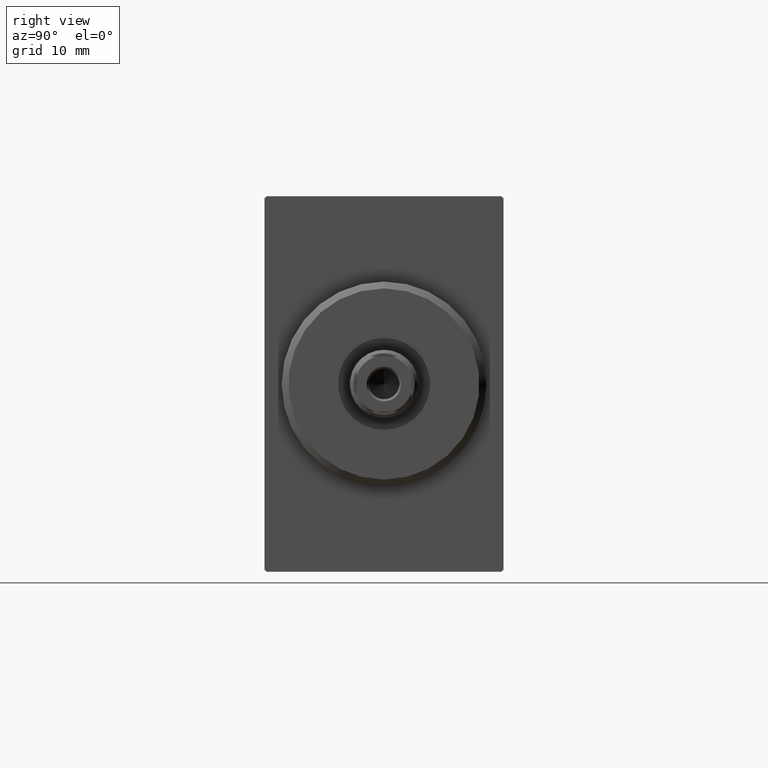
[diagram: clean part render]
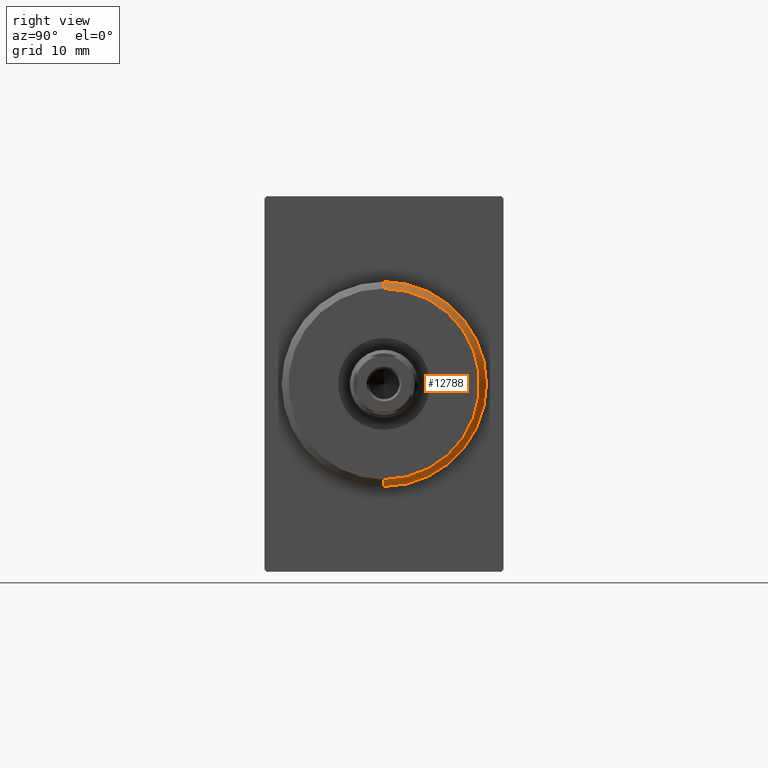
[diagram: same view with one face highlighted and labeled with its STEP entity id]
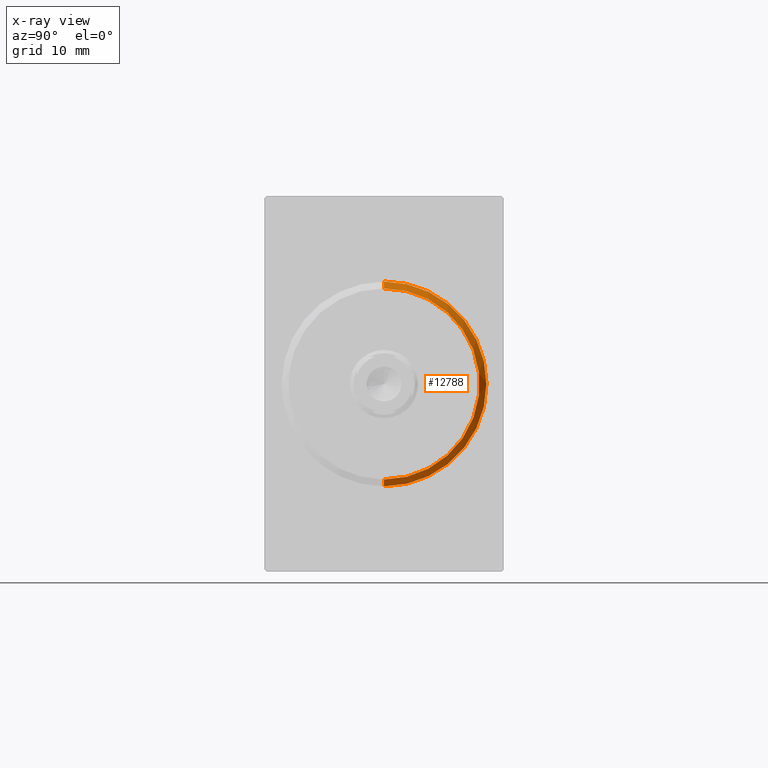
[diagram: x-ray of the same camera — body ghosted, the highlighted face saturated]
A machine part, right view. The second image highlights one B-rep face of the part: STEP entity #12788.
The next image is the same camera in x-ray: the body ghosted, the highlighted face saturated — about 0% of this face is hidden behind the body in this view.
In plain terms, the highlighted conical surface has half-angle 45 deg.
Its self-contained STEP definition (entity closure, byte-faithful):
#511 = AXIS2_PLACEMENT_3D ( 'NONE', #39841, #16606, #10259 ) ;
#1075 = DIRECTION ( 'NONE',  ( -1.000000000000000000, 0.000000000000000000, 0.000000000000000000 ) ) ;
#1335 = VECTOR ( 'NONE', #5879, 1000.000000000000114 ) ;
#1355 = LINE ( 'NONE', #14680, #41969 ) ;
#3305 = CARTESIAN_POINT ( 'NONE',  ( 2.000000000000002665, 1.836970198721029589E-15, -15.00000000000000000 ) ) ;
#5879 = DIRECTION ( 'NONE',  ( -0.7071067811865481278, 8.659560562354925463E-17, -0.7071067811865469066 ) ) ;
#6920 = CIRCLE ( 'NONE', #31414, 15.00000000000000000 ) ;
#8520 = ORIENTED_EDGE ( 'NONE', *, *, #18872, .T. ) ;
#10259 = DIRECTION ( 'NONE',  ( 0.000000000000000000, 0.000000000000000000, 1.000000000000000000 ) ) ;
#11244 = EDGE_CURVE ( 'NONE', #15242, #14721, #31226, .T. ) ;
#11573 = LINE ( 'NONE', #31959, #1335 ) ;
#11664 = CONICAL_SURFACE ( 'NONE', #511, 14.00000000000000355, 0.7853981633974473908 ) ;
#12788 = ADVANCED_FACE ( 'NONE', ( #26475 ), #11664, .T. ) ;
#14680 = CARTESIAN_POINT ( 'NONE',  ( 3.000000000000000000, 0.000000000000000000, 14.00000000000000355 ) ) ;
#14721 = VERTEX_POINT ( 'NONE', #42607 ) ;
#15134 = AXIS2_PLACEMENT_3D ( 'NONE', #32428, #43125, #35712 ) ;
#15242 = VERTEX_POINT ( 'NONE', #37300 ) ;
#15702 = ORIENTED_EDGE ( 'NONE', *, *, #11244, .F. ) ;
#16606 = DIRECTION ( 'NONE',  ( -1.000000000000000000, 0.000000000000000000, 0.000000000000000000 ) ) ;
#18872 = EDGE_CURVE ( 'NONE', #15242, #19324, #11573, .T. ) ;
#19324 = VERTEX_POINT ( 'NONE', #3305 ) ;
#20314 = EDGE_CURVE ( 'NONE', #42256, #19324, #6920, .T. ) ;
#21157 = ORIENTED_EDGE ( 'NONE', *, *, #20314, .F. ) ;
#23622 = CARTESIAN_POINT ( 'NONE',  ( 2.000000000000002665, 0.000000000000000000, 15.00000000000000000 ) ) ;
#26475 = FACE_OUTER_BOUND ( 'NONE', #39494, .T. ) ;
#26801 = EDGE_CURVE ( 'NONE', #14721, #42256, #1355, .T. ) ;
#29489 = ORIENTED_EDGE ( 'NONE', *, *, #26801, .F. ) ;
#31226 = CIRCLE ( 'NONE', #15134, 14.00000000000000355 ) ;
#31414 = AXIS2_PLACEMENT_3D ( 'NONE', #40699, #1075, #37856 ) ;
#31959 = CARTESIAN_POINT ( 'NONE',  ( 3.000000000000000000, 1.714505518806294835E-15, -14.00000000000000355 ) ) ;
#32428 = CARTESIAN_POINT ( 'NONE',  ( 3.000000000000000000, 0.000000000000000000, 0.000000000000000000 ) ) ;
#35712 = DIRECTION ( 'NONE',  ( 0.000000000000000000, 0.000000000000000000, -1.000000000000000000 ) ) ;
#37300 = CARTESIAN_POINT ( 'NONE',  ( 3.000000000000000000, 1.775737858763662015E-15, -14.00000000000000355 ) ) ;
#37856 = DIRECTION ( 'NONE',  ( 0.000000000000000000, 0.000000000000000000, -1.000000000000000000 ) ) ;
#39494 = EDGE_LOOP ( 'NONE', ( #15702, #8520, #21157, #29489 ) ) ;
#39841 = CARTESIAN_POINT ( 'NONE',  ( 3.000000000000000000, 0.000000000000000000, 0.000000000000000000 ) ) ;
#40699 = CARTESIAN_POINT ( 'NONE',  ( 2.000000000000002665, 0.000000000000000000, 0.000000000000000000 ) ) ;
#41421 = DIRECTION ( 'NONE',  ( -0.7071067811865481278, 0.000000000000000000, 0.7071067811865469066 ) ) ;
#41969 = VECTOR ( 'NONE', #41421, 1000.000000000000114 ) ;
#42256 = VERTEX_POINT ( 'NONE', #23622 ) ;
#42607 = CARTESIAN_POINT ( 'NONE',  ( 3.000000000000000000, 0.000000000000000000, 14.00000000000000355 ) ) ;
#43125 = DIRECTION ( 'NONE',  ( 1.000000000000000000, -0.000000000000000000, 0.000000000000000000 ) ) ;